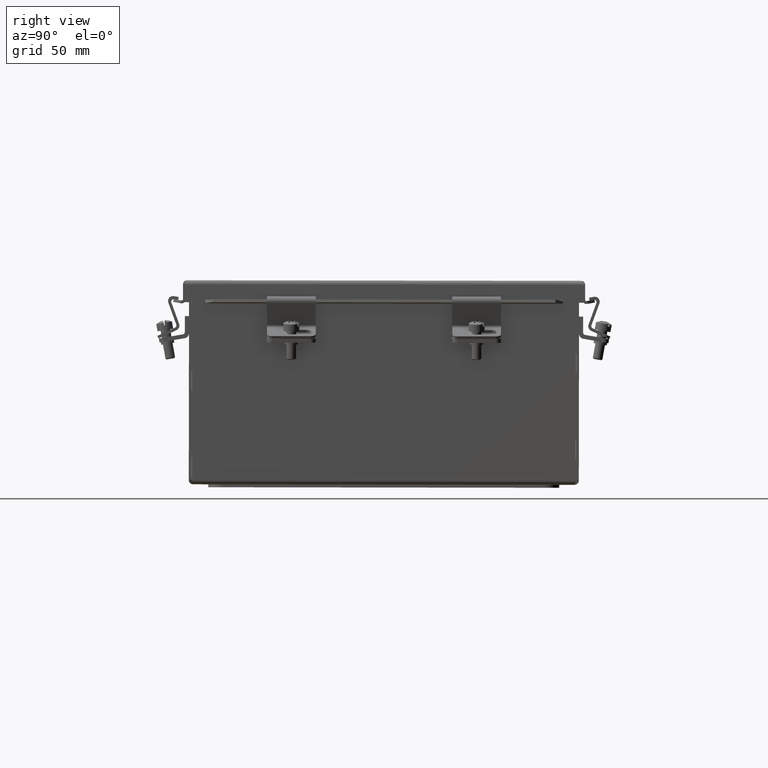
[diagram: clean part render]
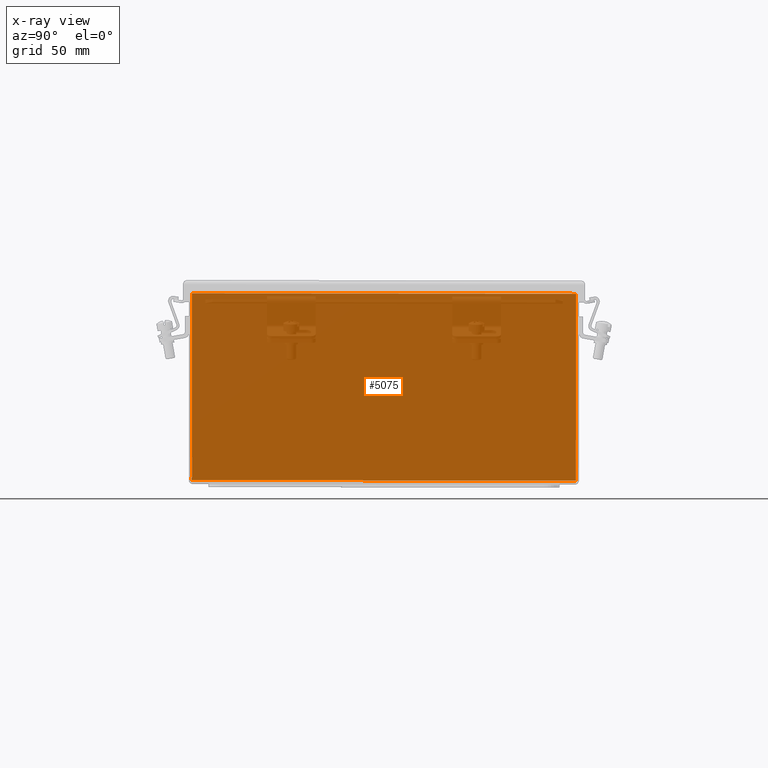
[diagram: x-ray — body ghosted, one internal face saturated and labeled with its STEP entity id]
A machine part, right view, then the same camera in x-ray: the body is ghosted and one INTERNAL B-rep face — a face not visible from any outside direction — is saturated and labeled: STEP entity #5075.
In plain terms, the highlighted planar face has unit normal (1, 0, 0).
Its self-contained STEP definition (entity closure, byte-faithful):
#678=PLANE('',#5688);
#999=FACE_OUTER_BOUND('',#1300,.T.);
#1300=EDGE_LOOP('',(#4568,#4569,#4570,#4571));
#1748=LINE('',#8764,#2215);
#1782=LINE('',#8904,#2249);
#1784=LINE('',#8908,#2251);
#1785=LINE('',#8909,#2252);
#2215=VECTOR('',#6794,0.393700787401575);
#2249=VECTOR('',#6858,0.393700787401575);
#2251=VECTOR('',#6862,0.393700787401575);
#2252=VECTOR('',#6863,0.393700787401575);
#2758=VERTEX_POINT('',#8717);
#2759=VERTEX_POINT('',#8747);
#2783=VERTEX_POINT('',#8903);
#2784=VERTEX_POINT('',#8907);
#3349=EDGE_CURVE('',#2759,#2758,#1748,.T.);
#3387=EDGE_CURVE('',#2783,#2759,#1782,.T.);
#3389=EDGE_CURVE('',#2784,#2758,#1784,.T.);
#3390=EDGE_CURVE('',#2784,#2783,#1785,.T.);
#4568=ORIENTED_EDGE('',*,*,#3349,.T.);
#4569=ORIENTED_EDGE('',*,*,#3389,.F.);
#4570=ORIENTED_EDGE('',*,*,#3390,.T.);
#4571=ORIENTED_EDGE('',*,*,#3387,.T.);
#5075=ADVANCED_FACE('',(#999),#678,.T.);
#5688=AXIS2_PLACEMENT_3D('',#8906,#6860,#6861);
#6794=DIRECTION('',(1.,-1.47512250511144E-22,0.));
#6858=DIRECTION('',(0.,-6.12323399573677E-17,1.));
#6860=DIRECTION('center_axis',(1.47512250511144E-22,1.,6.1953906734719E-17));
#6861=DIRECTION('ref_axis',(1.,-1.47512250511144E-22,-9.03252027117475E-39));
#6862=DIRECTION('',(0.,-6.12323399573677E-17,1.));
#6863=DIRECTION('',(-1.,1.47512250511144E-22,9.03252027117475E-39));
#8717=CARTESIAN_POINT('',(9.92529289321881,0.0740000000000012,4.89475));
#8747=CARTESIAN_POINT('',(0.0747071067811877,0.0740000000000012,4.89475));
#8764=CARTESIAN_POINT('',(7.4626464466094,0.0740000000000012,4.89475));
#8903=CARTESIAN_POINT('',(0.0747071067811888,0.0740000000000015,0.105250000000001));
#8904=CARTESIAN_POINT('',(0.0747071067811877,0.0740000000000015,0.10525));
#8906=CARTESIAN_POINT('Origin',(5.,0.0740000000000014,2.51432256968301));
#8907=CARTESIAN_POINT('',(9.92529289321881,0.0740000000000015,0.105250000000001));
#8908=CARTESIAN_POINT('',(9.92529289321881,0.0740000000000015,0.10525));
#8909=CARTESIAN_POINT('',(5.,0.0740000000000015,0.10525));